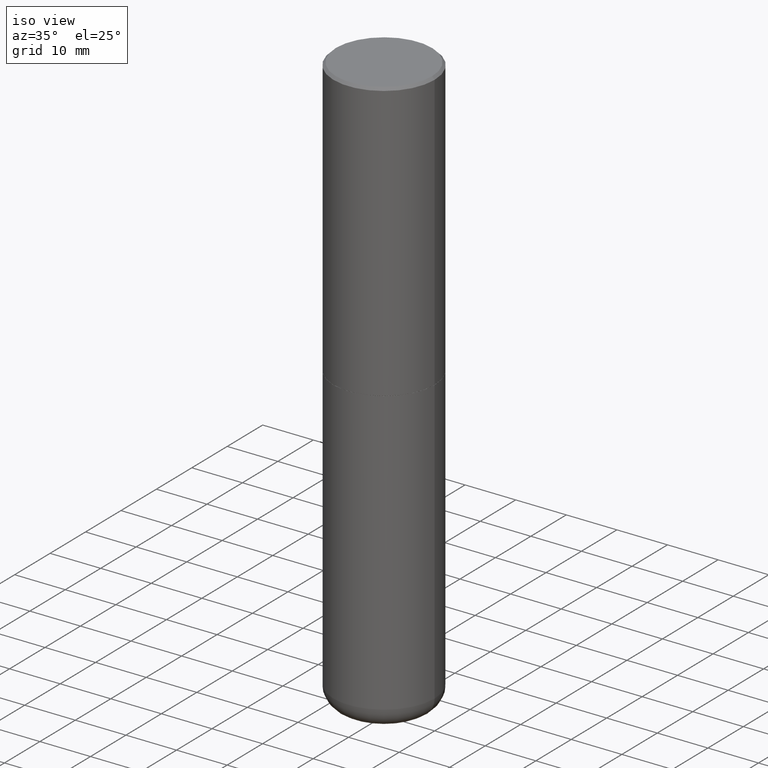
[diagram: clean part render]
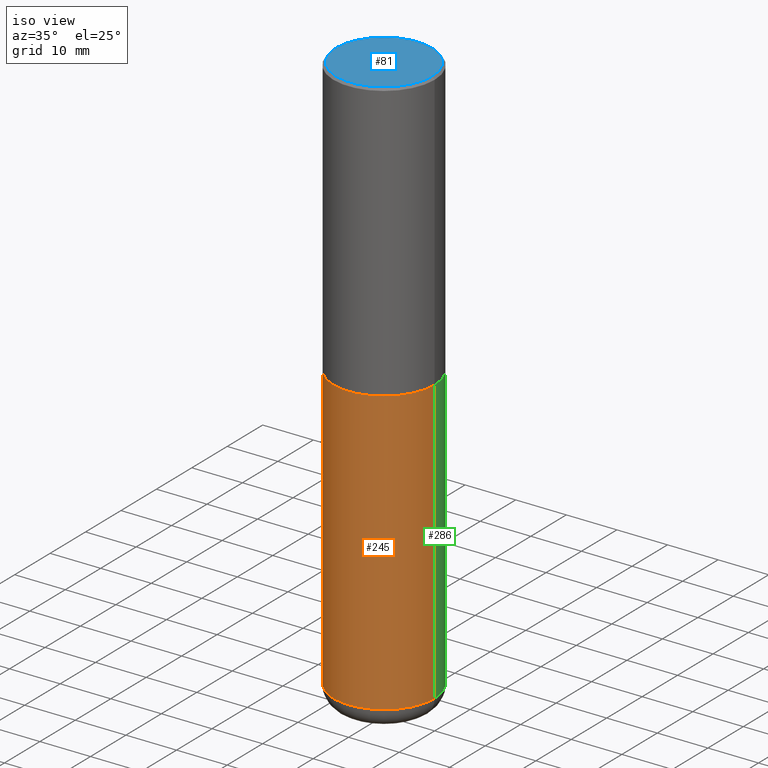
[diagram: same view with three faces highlighted in distinct colors, each labeled with its STEP entity id]
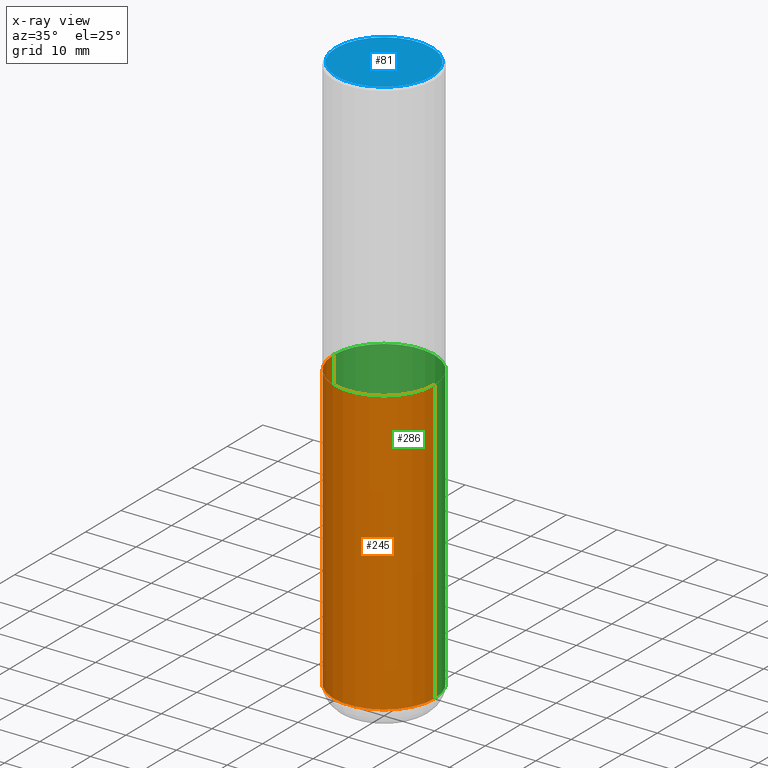
[diagram: x-ray of the same camera — body ghosted, the three highlighted faces saturated]
A machine part, iso view with three faces highlighted in distinct colors.
The next image is the same camera in x-ray (body ghosted, the three faces saturated) — at least one of them is partly hidden behind the body in this view.
Their STEP definitions:

[orange] entity #245 — the highlighted cylindrical surface (partial cylindrical patch) has radius 10 mm, axis along (-0, 0, 1).
#2 = EDGE_LOOP ( 'NONE', ( #82, #123, #97, #173 ) ) ;
#16 = VERTEX_POINT ( 'NONE', #315 ) ;
#34 = CARTESIAN_POINT ( 'NONE',  ( 1.068694322990966450E-28, -1.525812259887842897E-14, -4.370099999999998985 ) ) ;
#44 = CARTESIAN_POINT ( 'NONE',  ( 0.3937000000000001054, -2.749192406205084005E-15, 1.919750796630860452E-29 ) ) ;
#45 = VERTEX_POINT ( 'NONE', #141 ) ;
#47 = DIRECTION ( 'NONE',  ( -2.445468806185136877E-29, 3.491481338843145188E-15, 1.000000000000000000 ) ) ;
#60 = CARTESIAN_POINT ( 'NONE',  ( 0.000000000000000000, 0.000000000000000000, 0.000000000000000000 ) ) ;
#71 = CARTESIAN_POINT ( 'NONE',  ( -0.3937000000000001054, -1.246071584819091497E-14, -4.370099999999998985 ) ) ;
#72 = DIRECTION ( 'NONE',  ( -2.445468806185136597E-29, 3.491481338843145583E-15, 1.000000000000000000 ) ) ;
#76 = AXIS2_PLACEMENT_3D ( 'NONE', #234, #323, #301 ) ;
#82 = ORIENTED_EDGE ( 'NONE', *, *, #240, .F. ) ;
#84 = VERTEX_POINT ( 'NONE', #71 ) ;
#93 = DIRECTION ( 'NONE',  ( -2.445468806185136597E-29, 3.491481338843145583E-15, 1.000000000000000000 ) ) ;
#97 = ORIENTED_EDGE ( 'NONE', *, *, #136, .T. ) ;
#101 = AXIS2_PLACEMENT_3D ( 'NONE', #60, #93, #149 ) ;
#123 = ORIENTED_EDGE ( 'NONE', *, *, #235, .T. ) ;
#136 = EDGE_CURVE ( 'NONE', #16, #45, #207, .T. ) ;
#141 = CARTESIAN_POINT ( 'NONE',  ( 0.3937000000000000499, -1.030964609733602906E-14, -2.165399999999999547 ) ) ;
#149 = DIRECTION ( 'NONE',  ( 1.000000000000000000, -6.982962677686266711E-15, 4.876176775795935793E-29 ) ) ;
#173 = ORIENTED_EDGE ( 'NONE', *, *, #219, .F. ) ;
#174 = LINE ( 'NONE', #182, #358 ) ;
#182 = CARTESIAN_POINT ( 'NONE',  ( -0.3937000000000001054, 2.797406750687515181E-15, -1.936584745033357016E-29 ) ) ;
#202 = DIRECTION ( 'NONE',  ( 1.000000000000000000, -6.982962677686261977E-15, 0.000000000000000000 ) ) ;
#207 = LINE ( 'NONE', #44, #319 ) ;
#219 = EDGE_CURVE ( 'NONE', #354, #45, #365, .T. ) ;
#234 = CARTESIAN_POINT ( 'NONE',  ( 5.295418152913293224E-29, -7.560453691130945845E-15, -2.165399999999999547 ) ) ;
#235 = EDGE_CURVE ( 'NONE', #84, #16, #314, .T. ) ;
#240 = EDGE_CURVE ( 'NONE', #84, #354, #174, .T. ) ;
#245 = ADVANCED_FACE ( 'NONE', ( #408 ), #416, .T. ) ;
#272 = CARTESIAN_POINT ( 'NONE',  ( -0.3937000000000000499, -8.611881394317173410E-15, -2.165399999999999547 ) ) ;
#287 = AXIS2_PLACEMENT_3D ( 'NONE', #34, #72, #202 ) ;
#301 = DIRECTION ( 'NONE',  ( 1.000000000000000000, -6.982962677686265133E-15, 0.000000000000000000 ) ) ;
#314 = CIRCLE ( 'NONE', #287, 0.3937000000000001054 ) ;
#315 = CARTESIAN_POINT ( 'NONE',  ( 0.3937000000000001054, -1.800731500508351219E-14, -4.370099999999998985 ) ) ;
#319 = VECTOR ( 'NONE', #47, 39.37007874015748143 ) ;
#323 = DIRECTION ( 'NONE',  ( -2.445468806185136597E-29, 3.491481338843145583E-15, 1.000000000000000000 ) ) ;
#354 = VERTEX_POINT ( 'NONE', #272 ) ;
#358 = VECTOR ( 'NONE', #371, 39.37007874015748143 ) ;
#365 = CIRCLE ( 'NONE', #76, 0.3937000000000000499 ) ;
#371 = DIRECTION ( 'NONE',  ( -2.445468806185136877E-29, 3.491481338843145188E-15, 1.000000000000000000 ) ) ;
#408 = FACE_OUTER_BOUND ( 'NONE', #2, .T. ) ;
#416 = CYLINDRICAL_SURFACE ( 'NONE', #101, 0.3937000000000001054 ) ;

[blue] entity #81 — the highlighted planar face has unit normal (0, -0, -1).
#4 = VERTEX_POINT ( 'NONE', #89 ) ;
#6 = PLANE ( 'NONE',  #85 ) ;
#11 = CARTESIAN_POINT ( 'NONE',  ( 2.609533152651356620E-15, 0.3736999999999999211, -1.191650995338022328E-15 ) ) ;
#12 = CARTESIAN_POINT ( 'NONE',  ( -5.532412495976664402E-45, 7.898818803016371119E-31, 2.262311619753217762E-16 ) ) ;
#26 = ORIENTED_EDGE ( 'NONE', *, *, #291, .T. ) ;
#30 = EDGE_CURVE ( 'NONE', #4, #214, #251, .T. ) ;
#75 = FACE_OUTER_BOUND ( 'NONE', #131, .T. ) ;
#81 = ADVANCED_FACE ( 'NONE', ( #75 ), #6, .F. ) ;
#85 = AXIS2_PLACEMENT_3D ( 'NONE', #11, #102, #359 ) ;
#89 = CARTESIAN_POINT ( 'NONE',  ( 0.3736999999999999211, -2.667287895133367964E-15, 2.262311619753402158E-16 ) ) ;
#102 = DIRECTION ( 'NONE',  ( 2.438088387897960049E-29, -3.491481338843145188E-15, -1.000000000000000000 ) ) ;
#131 = EDGE_LOOP ( 'NONE', ( #26, #260 ) ) ;
#142 = AXIS2_PLACEMENT_3D ( 'NONE', #341, #217, #145 ) ;
#145 = DIRECTION ( 'NONE',  ( 1.000000000000000000, -6.982962677686266711E-15, 4.877734241229876808E-29 ) ) ;
#214 = VERTEX_POINT ( 'NONE', #391 ) ;
#217 = DIRECTION ( 'NONE',  ( -2.445468806185136597E-29, 3.491481338843145583E-15, 1.000000000000000000 ) ) ;
#226 = CIRCLE ( 'NONE', #142, 0.3736999999999999211 ) ;
#251 = CIRCLE ( 'NONE', #374, 0.3736999999999999211 ) ;
#260 = ORIENTED_EDGE ( 'NONE', *, *, #30, .T. ) ;
#265 = DIRECTION ( 'NONE',  ( 1.000000000000000000, -6.982962677686266711E-15, 4.877734241229876808E-29 ) ) ;
#291 = EDGE_CURVE ( 'NONE', #214, #4, #226, .T. ) ;
#341 = CARTESIAN_POINT ( 'NONE',  ( -5.532412495976664402E-45, 7.898818803016371119E-31, 2.262311619753217762E-16 ) ) ;
#359 = DIRECTION ( 'NONE',  ( -1.000000000000000000, 6.982962677686265922E-15, -4.876176775795935793E-29 ) ) ;
#362 = DIRECTION ( 'NONE',  ( -2.445468806185136597E-29, 3.491481338843145583E-15, 1.000000000000000000 ) ) ;
#374 = AXIS2_PLACEMENT_3D ( 'NONE', #12, #362, #265 ) ;
#391 = CARTESIAN_POINT ( 'NONE',  ( -0.3736999999999999211, 2.644447966039789453E-15, 2.262311619753034352E-16 ) ) ;

[green] entity #286 — the highlighted cylindrical surface (partial cylindrical patch) has radius 10 mm, axis along (-0, 0, 1).
#15 = CYLINDRICAL_SURFACE ( 'NONE', #233, 0.3937000000000001054 ) ;
#16 = VERTEX_POINT ( 'NONE', #315 ) ;
#17 = DIRECTION ( 'NONE',  ( 1.000000000000000000, -6.982962677686265133E-15, 0.000000000000000000 ) ) ;
#37 = CARTESIAN_POINT ( 'NONE',  ( 5.295418152913293224E-29, -7.560453691130945845E-15, -2.165399999999999547 ) ) ;
#44 = CARTESIAN_POINT ( 'NONE',  ( 0.3937000000000001054, -2.749192406205084005E-15, 1.919750796630860452E-29 ) ) ;
#45 = VERTEX_POINT ( 'NONE', #141 ) ;
#47 = DIRECTION ( 'NONE',  ( -2.445468806185136877E-29, 3.491481338843145188E-15, 1.000000000000000000 ) ) ;
#54 = DIRECTION ( 'NONE',  ( -2.445468806185136597E-29, 3.491481338843145583E-15, 1.000000000000000000 ) ) ;
#61 = EDGE_CURVE ( 'NONE', #45, #354, #357, .T. ) ;
#71 = CARTESIAN_POINT ( 'NONE',  ( -0.3937000000000001054, -1.246071584819091497E-14, -4.370099999999998985 ) ) ;
#84 = VERTEX_POINT ( 'NONE', #71 ) ;
#88 = ORIENTED_EDGE ( 'NONE', *, *, #61, .F. ) ;
#114 = DIRECTION ( 'NONE',  ( 1.000000000000000000, -6.982962677686261977E-15, 0.000000000000000000 ) ) ;
#136 = EDGE_CURVE ( 'NONE', #16, #45, #207, .T. ) ;
#141 = CARTESIAN_POINT ( 'NONE',  ( 0.3937000000000000499, -1.030964609733602906E-14, -2.165399999999999547 ) ) ;
#155 = ORIENTED_EDGE ( 'NONE', *, *, #240, .T. ) ;
#172 = CARTESIAN_POINT ( 'NONE',  ( 1.068694322990966450E-28, -1.525812259887842897E-14, -4.370099999999998985 ) ) ;
#174 = LINE ( 'NONE', #182, #358 ) ;
#179 = ORIENTED_EDGE ( 'NONE', *, *, #136, .F. ) ;
#182 = CARTESIAN_POINT ( 'NONE',  ( -0.3937000000000001054, 2.797406750687515181E-15, -1.936584745033357016E-29 ) ) ;
#189 = AXIS2_PLACEMENT_3D ( 'NONE', #37, #389, #17 ) ;
#207 = LINE ( 'NONE', #44, #319 ) ;
#218 = ORIENTED_EDGE ( 'NONE', *, *, #387, .T. ) ;
#233 = AXIS2_PLACEMENT_3D ( 'NONE', #345, #54, #372 ) ;
#240 = EDGE_CURVE ( 'NONE', #84, #354, #174, .T. ) ;
#242 = FACE_OUTER_BOUND ( 'NONE', #336, .T. ) ;
#257 = CIRCLE ( 'NONE', #307, 0.3937000000000001054 ) ;
#272 = CARTESIAN_POINT ( 'NONE',  ( -0.3937000000000000499, -8.611881394317173410E-15, -2.165399999999999547 ) ) ;
#286 = ADVANCED_FACE ( 'NONE', ( #242 ), #15, .T. ) ;
#307 = AXIS2_PLACEMENT_3D ( 'NONE', #172, #403, #114 ) ;
#315 = CARTESIAN_POINT ( 'NONE',  ( 0.3937000000000001054, -1.800731500508351219E-14, -4.370099999999998985 ) ) ;
#319 = VECTOR ( 'NONE', #47, 39.37007874015748143 ) ;
#336 = EDGE_LOOP ( 'NONE', ( #218, #155, #88, #179 ) ) ;
#345 = CARTESIAN_POINT ( 'NONE',  ( 0.000000000000000000, 0.000000000000000000, 0.000000000000000000 ) ) ;
#354 = VERTEX_POINT ( 'NONE', #272 ) ;
#357 = CIRCLE ( 'NONE', #189, 0.3937000000000000499 ) ;
#358 = VECTOR ( 'NONE', #371, 39.37007874015748143 ) ;
#371 = DIRECTION ( 'NONE',  ( -2.445468806185136877E-29, 3.491481338843145188E-15, 1.000000000000000000 ) ) ;
#372 = DIRECTION ( 'NONE',  ( 1.000000000000000000, -6.982962677686266711E-15, 4.876176775795935793E-29 ) ) ;
#387 = EDGE_CURVE ( 'NONE', #16, #84, #257, .T. ) ;
#389 = DIRECTION ( 'NONE',  ( -2.445468806185136597E-29, 3.491481338843145583E-15, 1.000000000000000000 ) ) ;
#403 = DIRECTION ( 'NONE',  ( -2.445468806185136597E-29, 3.491481338843145583E-15, 1.000000000000000000 ) ) ;